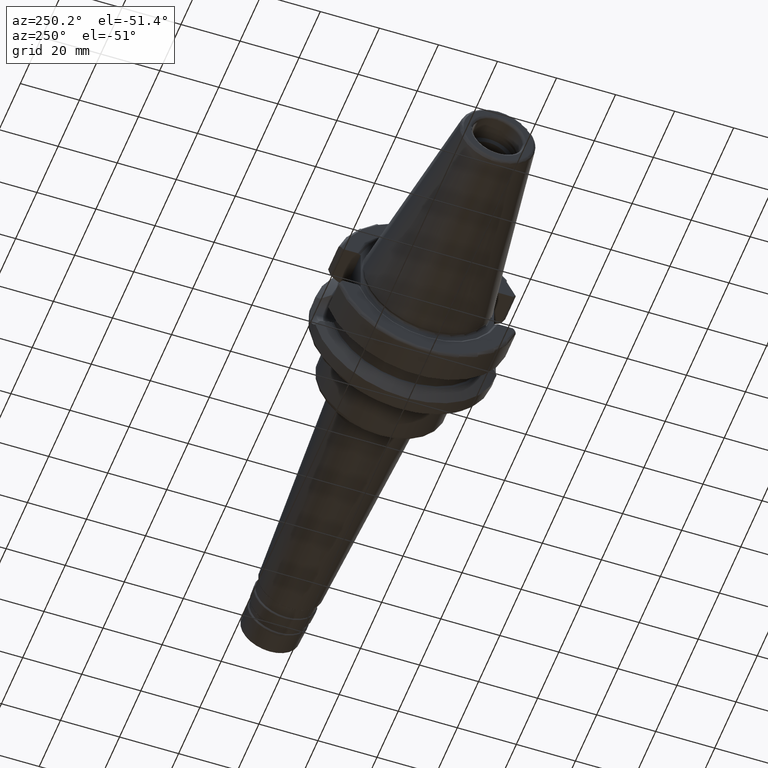
[diagram: clean part render]
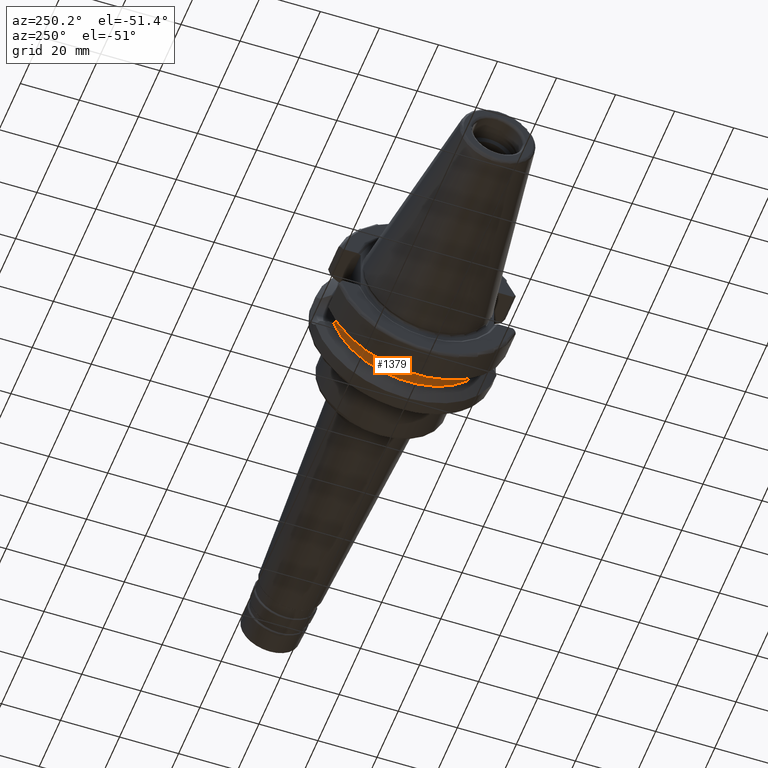
[diagram: same view with one face highlighted and labeled with its STEP entity id]
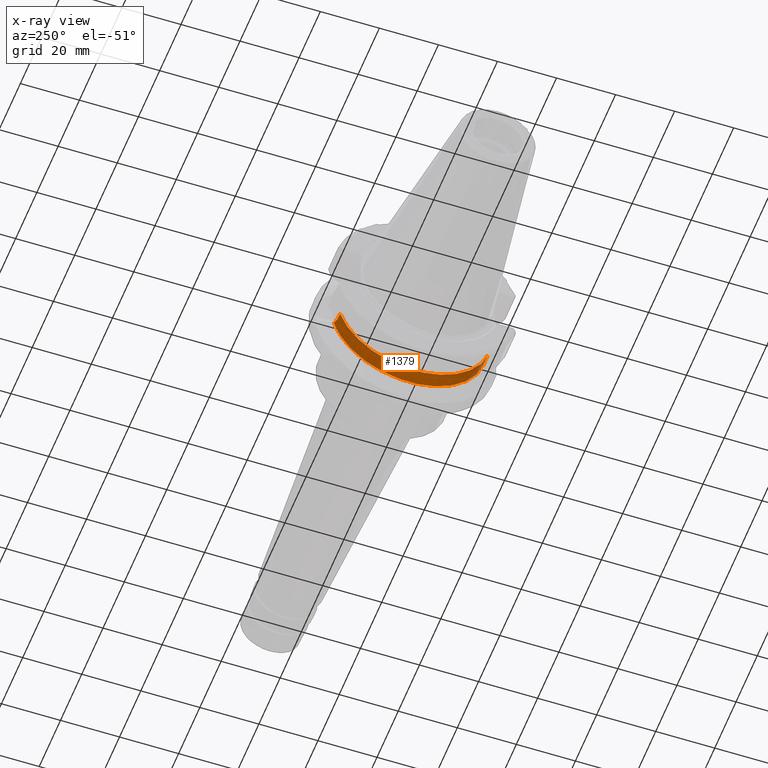
[diagram: x-ray of the same camera — body ghosted, the highlighted face saturated]
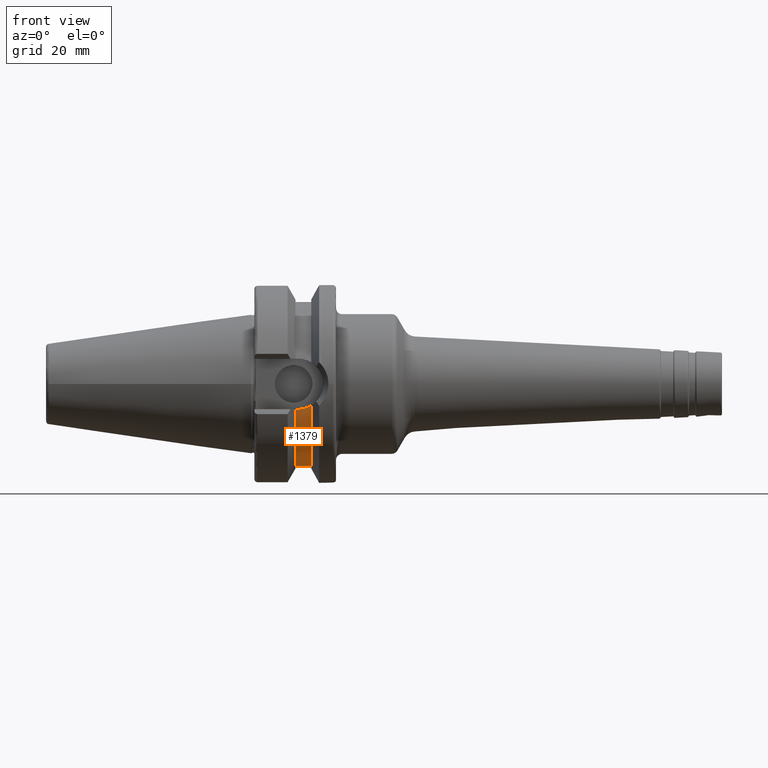
[diagram: same view with one face highlighted and labeled with its STEP entity id]
A machine part, auxiliary view. The second image highlights one B-rep face of the part: STEP entity #1379.
The next image is the same camera in x-ray: the body ghosted, the highlighted face saturated — about 0% of this face is hidden behind the body in this view.
A second angle (front view) of the same face is appended — the face is thin or edge-on in the first view.
In plain terms, the highlighted cylindrical surface (partial cylindrical patch) has radius 26.3 mm, axis along (1, 0, 0).
Its self-contained STEP definition (entity closure, byte-faithful):
#44=B_SPLINE_CURVE_WITH_KNOTS('',3,(#2591,#2592,#2593,#2594,#2595,#2596),
 .UNSPECIFIED.,.F.,.F.,(4,2,4),(2.02427460070182,2.13747311195296,2.44288295924093),
 .UNSPECIFIED.);
#45=B_SPLINE_CURVE_WITH_KNOTS('',3,(#2637,#2638,#2639,#2640,#2641,#2642),
 .UNSPECIFIED.,.F.,.F.,(4,2,4),(2.44288295924093,2.7482928065289,2.86149131778004),
 .UNSPECIFIED.);
#190=FACE_OUTER_BOUND('',#282,.T.);
#282=EDGE_LOOP('',(#1186,#1187,#1188,#1189,#1190,#1191));
#345=LINE('',#2536,#418);
#361=LINE('',#2601,#434);
#418=VECTOR('',#1890,10.);
#434=VECTOR('',#1924,10.);
#527=CIRCLE('',#1562,26.3);
#529=CIRCLE('',#1566,26.3);
#634=VERTEX_POINT('',#2533);
#635=VERTEX_POINT('',#2535);
#649=VERTEX_POINT('',#2588);
#650=VERTEX_POINT('',#2590);
#651=VERTEX_POINT('',#2599);
#659=VERTEX_POINT('',#2636);
#807=EDGE_CURVE('',#635,#634,#345,.T.);
#828=EDGE_CURVE('',#650,#649,#44,.T.);
#831=EDGE_CURVE('',#649,#651,#361,.T.);
#843=EDGE_CURVE('',#651,#635,#527,.T.);
#846=EDGE_CURVE('',#634,#659,#45,.T.);
#847=EDGE_CURVE('',#650,#659,#529,.T.);
#1186=ORIENTED_EDGE('',*,*,#831,.T.);
#1187=ORIENTED_EDGE('',*,*,#843,.T.);
#1188=ORIENTED_EDGE('',*,*,#807,.T.);
#1189=ORIENTED_EDGE('',*,*,#846,.T.);
#1190=ORIENTED_EDGE('',*,*,#847,.F.);
#1191=ORIENTED_EDGE('',*,*,#828,.T.);
#1307=CYLINDRICAL_SURFACE('',#1565,26.3);
#1379=ADVANCED_FACE('',(#190),#1307,.T.);
#1562=AXIS2_PLACEMENT_3D('',#2630,#1948,#1949);
#1565=AXIS2_PLACEMENT_3D('',#2635,#1955,#1956);
#1566=AXIS2_PLACEMENT_3D('',#2643,#1957,#1958);
#1890=DIRECTION('',(1.,0.,0.));
#1924=DIRECTION('',(-1.,0.,0.));
#1948=DIRECTION('center_axis',(1.,0.,0.));
#1949=DIRECTION('ref_axis',(0.,0.,-1.));
#1955=DIRECTION('center_axis',(1.,0.,0.));
#1956=DIRECTION('ref_axis',(0.,1.,0.));
#1957=DIRECTION('center_axis',(1.,0.,0.));
#1958=DIRECTION('ref_axis',(0.,0.,-1.));
#2533=CARTESIAN_POINT('',(14.95,25.0377215417058,-8.05));
#2535=CARTESIAN_POINT('',(14.1,25.0377215417058,-8.05));
#2536=CARTESIAN_POINT('',(16.6,25.0377215417058,-8.05));
#2588=CARTESIAN_POINT('',(14.95,-25.0377215417058,-8.05));
#2590=CARTESIAN_POINT('',(19.1,-25.3793222919762,-6.8978257443922));
#2591=CARTESIAN_POINT('Ctrl Pts',(19.1,-25.3793222919762,-6.8978257443922));
#2592=CARTESIAN_POINT('Ctrl Pts',(18.7623374744972,-25.3241080721198,-7.10097664045187));
#2593=CARTESIAN_POINT('Ctrl Pts',(18.4068260684762,-25.2726009715968,-7.28086186600679));
#2594=CARTESIAN_POINT('Ctrl Pts',(17.0490724969254,-25.1063150193149,-7.84520188991776));
#2595=CARTESIAN_POINT('Ctrl Pts',(15.9680328242932,-25.0377215417058,-8.05));
#2596=CARTESIAN_POINT('Ctrl Pts',(14.95,-25.0377215417058,-8.05));
#2599=CARTESIAN_POINT('',(14.1,-25.0377215417058,-8.05));
#2601=CARTESIAN_POINT('',(16.6,-25.0377215417058,-8.05));
#2630=CARTESIAN_POINT('Origin',(14.1,0.,0.));
#2635=CARTESIAN_POINT('Origin',(16.6,0.,0.));
#2636=CARTESIAN_POINT('',(19.1,25.3793222919762,-6.8978257443922));
#2637=CARTESIAN_POINT('Ctrl Pts',(14.95,25.0377215417058,-8.05));
#2638=CARTESIAN_POINT('Ctrl Pts',(15.9680328242932,25.0377215417058,-8.05));
#2639=CARTESIAN_POINT('Ctrl Pts',(17.0490724969254,25.1063150193149,-7.84520188991776));
#2640=CARTESIAN_POINT('Ctrl Pts',(18.4068260684762,25.2726009715968,-7.28086186600679));
#2641=CARTESIAN_POINT('Ctrl Pts',(18.7623374744972,25.3241080721198,-7.10097664045186));
#2642=CARTESIAN_POINT('Ctrl Pts',(19.1,25.3793222919762,-6.8978257443922));
#2643=CARTESIAN_POINT('Origin',(19.1,0.,0.));